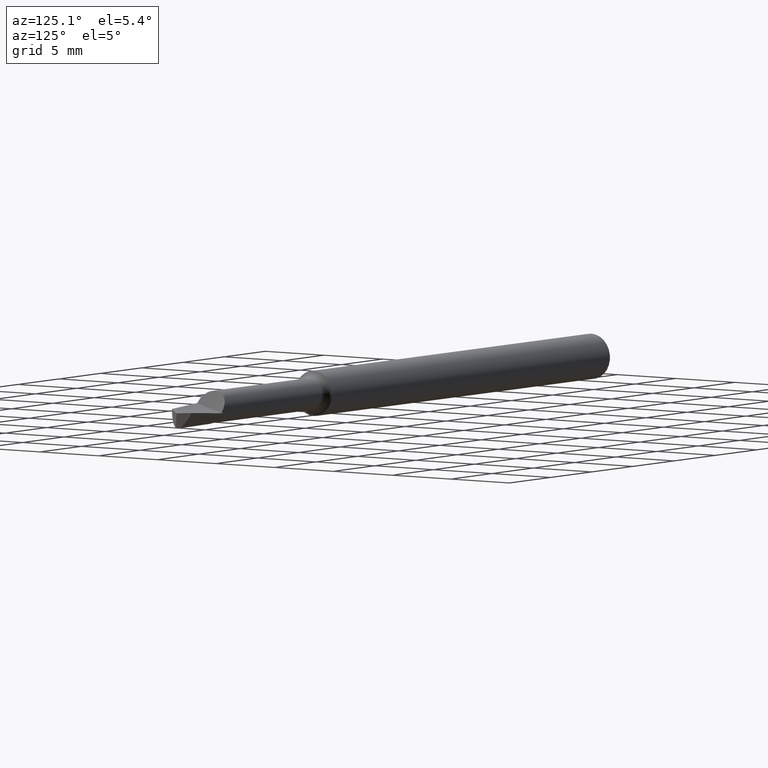
[diagram: clean part render]
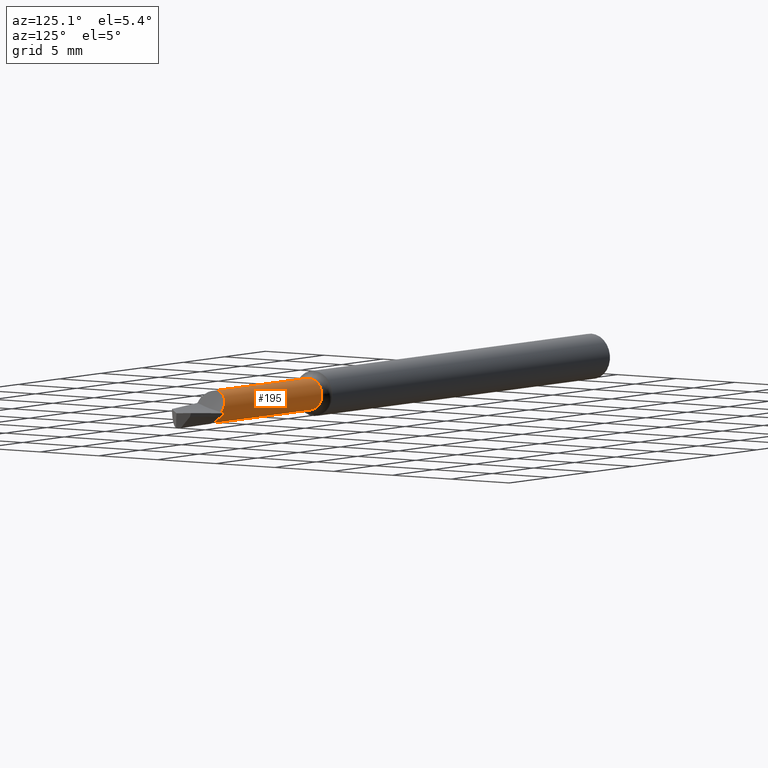
[diagram: same view with one face highlighted and labeled with its STEP entity id]
A machine part, auxiliary view. The second image highlights one B-rep face of the part: STEP entity #195.
In plain terms, the highlighted cylindrical surface (edge-blend (fillet) strip) has radius 1.1176 mm, axis along (-1, -0, -0).
Its self-contained STEP definition (entity closure, byte-faithful):
#1 = EDGE_CURVE ( 'NONE', #391, #685, #250, .T. ) ;
#5 = CARTESIAN_POINT ( 'NONE',  ( 1.806000000000000050, 0.006042410246203819280, 0.04358313066332623192 ) ) ;
#10 = CARTESIAN_POINT ( 'NONE',  ( 1.815488579519248580, 0.03860551782770015039, 0.02113344978599027146 ) ) ;
#13 = CARTESIAN_POINT ( 'NONE',  ( 1.832649644870427030, 0.04381148599927516679, -0.006534799547832522391 ) ) ;
#16 = CARTESIAN_POINT ( 'NONE',  ( 1.824487569580132584, 0.04355296984319946552, 0.006331378749687262275 ) ) ;
#29 = EDGE_CURVE ( 'NONE', #443, #469, #365, .T. ) ;
#32 = VERTEX_POINT ( 'NONE', #291 ) ;
#58 = ORIENTED_EDGE ( 'NONE', *, *, #118, .T. ) ;
#75 = EDGE_CURVE ( 'NONE', #443, #388, #155, .T. ) ;
#90 = AXIS2_PLACEMENT_3D ( 'NONE', #181, #200, #456 ) ;
#118 = EDGE_CURVE ( 'NONE', #576, #32, #488, .T. ) ;
#126 = ORIENTED_EDGE ( 'NONE', *, *, #627, .T. ) ;
#151 = CARTESIAN_POINT ( 'NONE',  ( 1.840000000000000080, 0.02851814440934258288, -0.03350694613729936211 ) ) ;
#152 = DIRECTION ( 'NONE',  ( 1.000000000000000000, 0.000000000000000000, 0.000000000000000000 ) ) ;
#154 = CARTESIAN_POINT ( 'NONE',  ( 1.806645572135293198, -1.605047027801943588E-06, 0.04400469612014611120 ) ) ;
#155 = B_SPLINE_CURVE_WITH_KNOTS ( 'NONE', 3,
 ( #592, #661, #595, #5 ),
 .UNSPECIFIED., .F., .F.,
 ( 4, 4 ),
 ( 0.000000000000000000, 1.000000000000000000 ),
 .UNSPECIFIED. ) ;
#167 = CARTESIAN_POINT ( 'NONE',  ( 1.840000000000000524, 0.04254520125568710814, -0.01122077760732640046 ) ) ;
#175 = CARTESIAN_POINT ( 'NONE',  ( 1.806000000000000050, 0.01502352246879054901, 0.04135569818815470339 ) ) ;
#178 = VECTOR ( 'NONE', #243, 39.37007874015748143 ) ;
#181 = CARTESIAN_POINT ( 'NONE',  ( 1.359099325716708107, 0.000000000000000000, 0.000000000000000000 ) ) ;
#188 = CARTESIAN_POINT ( 'NONE',  ( 1.813840236874062484, 0.03687567909233643859, 0.02405100008509548221 ) ) ;
#195 = ADVANCED_FACE ( 'NONE', ( #230 ), #623, .T. ) ;
#200 = DIRECTION ( 'NONE',  ( -1.000000000000000000, -0.000000000000000000, -0.000000000000000000 ) ) ;
#209 = CARTESIAN_POINT ( 'NONE',  ( 1.816172556992620812, 0.03921905190321879620, 0.01995294309135630176 ) ) ;
#210 = ORIENTED_EDGE ( 'NONE', *, *, #494, .T. ) ;
#219 = CARTESIAN_POINT ( 'NONE',  ( 1.806584803989185861, 0.0004307009242537059653, 0.04400001224264010746 ) ) ;
#227 = ORIENTED_EDGE ( 'NONE', *, *, #29, .T. ) ;
#230 = FACE_OUTER_BOUND ( 'NONE', #762, .T. ) ;
#231 = ORIENTED_EDGE ( 'NONE', *, *, #684, .T. ) ;
#242 = EDGE_CURVE ( 'NONE', #32, #685, #809, .T. ) ;
#243 = DIRECTION ( 'NONE',  ( -1.000000000000000000, -0.000000000000000000, -0.000000000000000000 ) ) ;
#250 = CIRCLE ( 'NONE', #90, 0.04399999999999992806 ) ;
#255 = CARTESIAN_POINT ( 'NONE',  ( 1.813160508245734714, 0.03603691170435705665, 0.02528904872616571931 ) ) ;
#265 = CARTESIAN_POINT ( 'NONE',  ( 1.840000000000000080, 0.000000000000000000, 0.000000000000000000 ) ) ;
#271 = CARTESIAN_POINT ( 'NONE',  ( 1.825931518381612051, 0.04381444014808615062, 0.004049318782235674340 ) ) ;
#274 = CARTESIAN_POINT ( 'NONE',  ( 1.835957477719311948, 0.04247873417013275921, -0.01146983623698223133 ) ) ;
#275 = CARTESIAN_POINT ( 'NONE',  ( 1.825184145557343873, 0.04368982805595991725, 0.005228637563037610847 ) ) ;
#279 = DIRECTION ( 'NONE',  ( 0.000000000000000000, 0.000000000000000000, 1.000000000000000000 ) ) ;
#287 = CARTESIAN_POINT ( 'NONE',  ( 1.835957477719311948, 0.04247873417013275921, -0.01146983623698223133 ) ) ;
#288 = VERTEX_POINT ( 'NONE', #151 ) ;
#291 = CARTESIAN_POINT ( 'NONE',  ( 1.840000000000000302, 0.000000000000000000, -0.04399999999999999745 ) ) ;
#292 = ORIENTED_EDGE ( 'NONE', *, *, #75, .F. ) ;
#299 = VERTEX_POINT ( 'NONE', #167 ) ;
#317 = CARTESIAN_POINT ( 'NONE',  ( 1.806000000000000050, 0.01502352246879054901, 0.04135569818815470339 ) ) ;
#321 = CARTESIAN_POINT ( 'NONE',  ( 1.835957477719311948, 0.04247873417013275921, -0.01146983623698223133 ) ) ;
#335 = CARTESIAN_POINT ( 'NONE',  ( 1.821695935261249844, 0.04267307383296666673, 0.01080308965078180874 ) ) ;
#338 = CARTESIAN_POINT ( 'NONE',  ( 1.816472062690037470, 0.03947281274095175430, 0.01944051067236420710 ) ) ;
#341 = CARTESIAN_POINT ( 'NONE',  ( 1.816673149264879550, 0.03963991880519358857, 0.01909746679542105585 ) ) ;
#354 = DIRECTION ( 'NONE',  ( -1.000000000000000000, -0.000000000000000000, -0.000000000000000000 ) ) ;
#360 =( BOUNDED_CURVE ( )  B_SPLINE_CURVE ( 2, ( #274, #398, #603 ),
 .UNSPECIFIED., .F., .T. ) 
 B_SPLINE_CURVE_WITH_KNOTS ( ( 3, 3 ),
 ( 0.6960896133483621684, 0.7035278658483815617 ),
 .UNSPECIFIED. ) 
 CURVE ( )  GEOMETRIC_REPRESENTATION_ITEM ( )  RATIONAL_B_SPLINE_CURVE ( ( 0.9800704407896163595, 0.9800094700550632254, 0.9799569117201770707 ) ) 
 REPRESENTATION_ITEM ( '' )  );
#365 = B_SPLINE_CURVE_WITH_KNOTS ( 'NONE', 3,
 ( #317, #820, #440, #571, #825, #255, #188, #840, #10, #209, #338, #341, #719, #601, #658, #335, #589, #406, #16, #275, #474, #271, #522, #13, #287 ),
 .UNSPECIFIED., .F., .F.,
 ( 4, 2, 2, 2, 1, 1, 2, 2, 2, 2, 1, 2, 2, 4 ),
 ( 0.000000000000000000, 0.2500000000000549560, 0.3750000000000806022, 0.4375000000000955347, 0.4687500000001030287, 0.4843750000001090794, 0.4921875000001097455, 0.5000000000001104672, 0.6250000000001015854, 0.6875000000000942579, 0.7187500000000879297, 0.7343750000000847100, 0.7500000000000814904, 1.000000000000000000 ),
 .UNSPECIFIED. ) ;
#382 = CARTESIAN_POINT ( 'NONE',  ( 1.359099325716708107, 0.000000000000000000, 0.04399999999999992806 ) ) ;
#388 = VERTEX_POINT ( 'NONE', #827 ) ;
#391 = VERTEX_POINT ( 'NONE', #382 ) ;
#398 = CARTESIAN_POINT ( 'NONE',  ( 1.837978504615836339, 0.04251233249372542849, -0.01134540427239556955 ) ) ;
#406 = CARTESIAN_POINT ( 'NONE',  ( 1.823818216992804775, 0.04337937483282460621, 0.007397896961302856053 ) ) ;
#407 = AXIS2_PLACEMENT_3D ( 'NONE', #788, #656, #792 ) ;
#409 = CARTESIAN_POINT ( 'NONE',  ( 1.840000000000000524, 0.01304774452694784474, -0.04202090387842107727 ) ) ;
#422 = AXIS2_PLACEMENT_3D ( 'NONE', #780, #520, #279 ) ;
#428 = CARTESIAN_POINT ( 'NONE',  ( 1.806066406345927300, 0.005055551177186092329, 0.04371995081420762541 ) ) ;
#429 = DIRECTION ( 'NONE',  ( -1.000000000000000000, -0.000000000000000000, -0.000000000000000000 ) ) ;
#440 = CARTESIAN_POINT ( 'NONE',  ( 1.807450798487066690, 0.02493885775838036029, 0.03670075782472990295 ) ) ;
#443 = VERTEX_POINT ( 'NONE', #175 ) ;
#456 = DIRECTION ( 'NONE',  ( 0.000000000000000000, 0.000000000000000000, 1.000000000000000000 ) ) ;
#461 = CIRCLE ( 'NONE', #422, 0.04399999999999999745 ) ;
#469 = VERTEX_POINT ( 'NONE', #321 ) ;
#474 = CARTESIAN_POINT ( 'NONE',  ( 1.825654579184348592, 0.04377235494399921850, 0.004485606868808031215 ) ) ;
#477 = CARTESIAN_POINT ( 'NONE',  ( 0.000000000000000000, 0.000000000000000000, 0.04399999999999996275 ) ) ;
#478 = CARTESIAN_POINT ( 'NONE',  ( 1.806503301658712202, 0.001021434485236766884, 0.04399108489073413897 ) ) ;
#485 = CARTESIAN_POINT ( 'NONE',  ( 0.000000000000000000, 0.000000000000000000, 0.000000000000000000 ) ) ;
#488 = CIRCLE ( 'NONE', #407, 0.04399999999999999745 ) ;
#490 = CARTESIAN_POINT ( 'NONE',  ( 0.000000000000000000, 5.388445916248349113E-18, -0.04399999999999996275 ) ) ;
#494 = EDGE_CURVE ( 'NONE', #469, #299, #360, .T. ) ;
#507 = VERTEX_POINT ( 'NONE', #533 ) ;
#520 = DIRECTION ( 'NONE',  ( -1.000000000000000000, -0.000000000000000000, -0.000000000000000000 ) ) ;
#522 = CARTESIAN_POINT ( 'NONE',  ( 1.829375189563220871, 0.04427514283827316266, -0.001364418480959941199 ) ) ;
#523 = CARTESIAN_POINT ( 'NONE',  ( 1.359099325716708107, 5.388445916248346802E-18, -0.04399999999999992806 ) ) ;
#526 = AXIS2_PLACEMENT_3D ( 'NONE', #485, #429, #551 ) ;
#533 = CARTESIAN_POINT ( 'NONE',  ( 1.806645572135293198, -1.605047027801943588E-06, 0.04400469612014611120 ) ) ;
#551 = DIRECTION ( 'NONE',  ( 0.000000000000000000, 0.000000000000000000, 1.000000000000000000 ) ) ;
#558 = ORIENTED_EDGE ( 'NONE', *, *, #1, .F. ) ;
#571 = CARTESIAN_POINT ( 'NONE',  ( 1.810169704754772901, 0.03136967638997147784, 0.03098655298656198889 ) ) ;
#576 = VERTEX_POINT ( 'NONE', #409 ) ;
#583 = ORIENTED_EDGE ( 'NONE', *, *, #242, .T. ) ;
#589 = CARTESIAN_POINT ( 'NONE',  ( 1.822515809671329201, 0.04298960608165732639, 0.009481030022679172442 ) ) ;
#592 = CARTESIAN_POINT ( 'NONE',  ( 1.806000000000000050, 0.01502352246879054901, 0.04135569818815470339 ) ) ;
#595 = CARTESIAN_POINT ( 'NONE',  ( 1.806000000000000272, 0.009027440795395252557, 0.04281001014657273562 ) ) ;
#601 = CARTESIAN_POINT ( 'NONE',  ( 1.818032137449004493, 0.04072744428580667847, 0.01679199236951776572 ) ) ;
#603 = CARTESIAN_POINT ( 'NONE',  ( 1.840000000000000524, 0.04254520125568710814, -0.01122077760732640046 ) ) ;
#605 = CARTESIAN_POINT ( 'NONE',  ( 1.806196648552261141, 0.003557671217741856327, 0.04387635323605214299 ) ) ;
#623 = CYLINDRICAL_SURFACE ( 'NONE', #526, 0.04399999999999996275 ) ;
#626 = B_SPLINE_CURVE_WITH_KNOTS ( 'NONE', 3,
 ( #154, #219, #478, #738, #605, #428, #731 ),
 .UNSPECIFIED., .F., .F.,
 ( 4, 2, 1, 4 ),
 ( 0.9133091907444047530, 0.9349818930583035925, 0.9566545953722023210, 1.000000000000000000 ),
 .UNSPECIFIED. ) ;
#627 = EDGE_CURVE ( 'NONE', #507, #388, #626, .T. ) ;
#656 = DIRECTION ( 'NONE',  ( -1.000000000000000000, -0.000000000000000000, -0.000000000000000000 ) ) ;
#658 = CARTESIAN_POINT ( 'NONE',  ( 1.819381503443730397, 0.04160192991899874099, 0.01456266913863462319 ) ) ;
#661 = CARTESIAN_POINT ( 'NONE',  ( 1.806000000000000272, 0.01202158822878221338, 0.04206744494045958072 ) ) ;
#672 = DIRECTION ( 'NONE',  ( 0.000000000000000000, 0.000000000000000000, 1.000000000000000000 ) ) ;
#675 = ORIENTED_EDGE ( 'NONE', *, *, #804, .F. ) ;
#684 = EDGE_CURVE ( 'NONE', #299, #288, #461, .T. ) ;
#685 = VERTEX_POINT ( 'NONE', #523 ) ;
#697 = ORIENTED_EDGE ( 'NONE', *, *, #828, .F. ) ;
#714 = AXIS2_PLACEMENT_3D ( 'NONE', #265, #152, #672 ) ;
#719 = CARTESIAN_POINT ( 'NONE',  ( 1.816804123914292468, 0.03974618859559413825, 0.01887482012635703990 ) ) ;
#729 = VECTOR ( 'NONE', #354, 39.37007874015748143 ) ;
#731 = CARTESIAN_POINT ( 'NONE',  ( 1.806000000000000050, 0.006042410246203819280, 0.04358313066332623192 ) ) ;
#738 = CARTESIAN_POINT ( 'NONE',  ( 1.806374316927009005, 0.002038420778723301977, 0.04395570178031827507 ) ) ;
#762 = EDGE_LOOP ( 'NONE', ( #58, #583, #558, #697, #126, #292, #227, #210, #231, #675 ) ) ;
#768 = CIRCLE ( 'NONE', #714, 0.04399999999999996275 ) ;
#780 = CARTESIAN_POINT ( 'NONE',  ( 1.840000000000000080, 0.000000000000000000, 0.000000000000000000 ) ) ;
#788 = CARTESIAN_POINT ( 'NONE',  ( 1.840000000000000080, 0.000000000000000000, 0.000000000000000000 ) ) ;
#792 = DIRECTION ( 'NONE',  ( 0.000000000000000000, 0.000000000000000000, 1.000000000000000000 ) ) ;
#793 = LINE ( 'NONE', #477, #729 ) ;
#804 = EDGE_CURVE ( 'NONE', #576, #288, #768, .T. ) ;
#809 = LINE ( 'NONE', #490, #178 ) ;
#820 = CARTESIAN_POINT ( 'NONE',  ( 1.806363242576469519, 0.02005489588577210117, 0.03952792865504635433 ) ) ;
#825 = CARTESIAN_POINT ( 'NONE',  ( 1.811257268910976936, 0.03336280251003857777, 0.02883926787080794488 ) ) ;
#827 = CARTESIAN_POINT ( 'NONE',  ( 1.806000000000000050, 0.006042410246203819280, 0.04358313066332623192 ) ) ;
#828 = EDGE_CURVE ( 'NONE', #507, #391, #793, .T. ) ;
#840 = CARTESIAN_POINT ( 'NONE',  ( 1.814927803091667124, 0.03804389189905826169, 0.02211851865691565402 ) ) ;